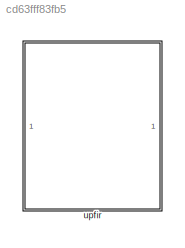
MODEL slx_cd63fff83fb5
KIND library
CONFIG AbsTol = auto
CONFIG EnableMultiTasking = off
CONFIG FixedStep = auto
CONFIG MaxStep = auto
CONFIG MinStep = auto
CONFIG RelTol = 1e-3
CONFIG SampleTimeConstraint = Unconstrained
CONFIG SolverName = VariableStepAuto
CONFIG StartTime = 0.0
CONFIG StopTime = 10.0
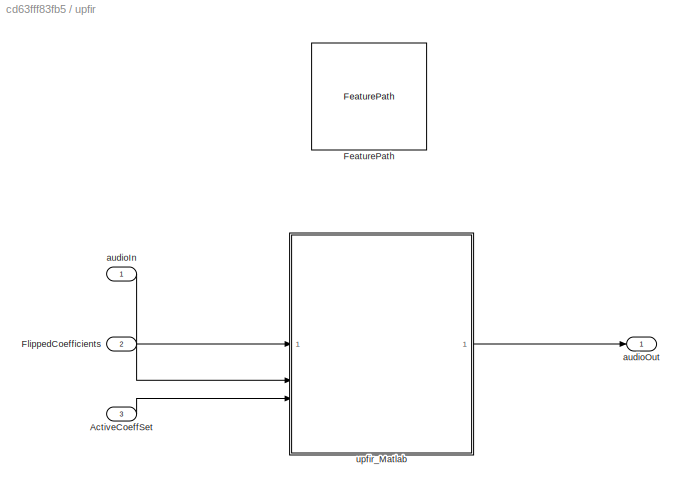
BLOCK [SubSystem] upfir
BLOCK [Inport] upfir/ActiveCoeffSet
  Port = 3
BLOCK [Reference] upfir/FeaturePath  REF=FeaturePath/FeaturePath
  SourceBlock = FeaturePath/FeaturePath
  SourceType = Talaria Feature Path
BLOCK [Inport] upfir/FlippedCoefficients
  Port = 2
BLOCK [Inport] upfir/audioIn
BLOCK [Outport] upfir/audioOut
  VectorParamsAs1DForOutWhenUnconnected = off
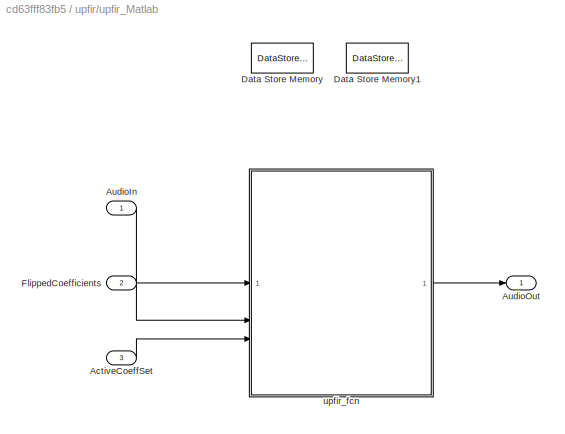
BLOCK [SubSystem] upfir/upfir_Matlab
BLOCK [Inport] upfir/upfir_Matlab/ActiveCoeffSet
  Port = 3
BLOCK [Inport] upfir/upfir_Matlab/AudioIn
BLOCK [Outport] upfir/upfir_Matlab/AudioOut
  VectorParamsAs1DForOutWhenUnconnected = off
BLOCK [DataStoreMemory] upfir/upfir_Matlab/Data Store Memory
  DataStoreName = states
  InitialValue = single(zeros(polyLen + 2, numChannels))
  OutDataTypeStr = single
  ShowAdditionalParam = off
  SignalType = real
BLOCK [DataStoreMemory] upfir/upfir_Matlab/Data Store Memory1
  DataStoreName = state_index
  OutDataTypeStr = int32
  ShowAdditionalParam = off
  SignalType = real
BLOCK [Inport] upfir/upfir_Matlab/FlippedCoefficients
  Port = 2
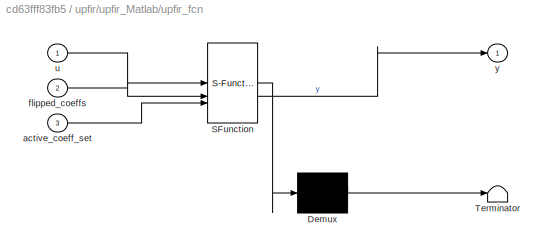
BLOCK [SubSystem] upfir/upfir_Matlab/upfir_fcn
  ErrorFcn = Stateflow.Translate.translate
  PermitHierarchicalResolution = ExplicitOnly
  SFBlockType = MATLAB Function
  TreatAsAtomicUnit = on
BLOCK [Demux] upfir/upfir_Matlab/upfir_fcn/ Demux 
  Outputs = 1
BLOCK [S-Function] upfir/upfir_Matlab/upfir_fcn/ SFunction 
  EnableBusSupport = off
  FunctionName = sf_sfun
  Parameters = interp_factor
  PortCounts = [3 2]
  SFcnIsStateOwnerBlock = off
  SFunctionDeploymentMode = off
  Tag = Stateflow S-Function 3
BLOCK [Terminator] upfir/upfir_Matlab/upfir_fcn/ Terminator 
BLOCK [Inport] upfir/upfir_Matlab/upfir_fcn/active_coeff_set
  Port = 3
BLOCK [Inport] upfir/upfir_Matlab/upfir_fcn/flipped_coeffs
  Port = 2
BLOCK [Inport] upfir/upfir_Matlab/upfir_fcn/u
BLOCK [Outport] upfir/upfir_Matlab/upfir_fcn/y
  VectorParamsAs1DForOutWhenUnconnected = off
LINE upfir/ActiveCoeffSet:1 -> upfir/upfir_Matlab:3
LINE upfir/FlippedCoefficients:1 -> upfir/upfir_Matlab:2
LINE upfir/audioIn:1 -> upfir/upfir_Matlab:1
LINE upfir/upfir_Matlab/ActiveCoeffSet:1 -> upfir/upfir_Matlab/upfir_fcn:3
LINE upfir/upfir_Matlab/AudioIn:1 -> upfir/upfir_Matlab/upfir_fcn:1
LINE upfir/upfir_Matlab/FlippedCoefficients:1 -> upfir/upfir_Matlab/upfir_fcn:2
LINE upfir/upfir_Matlab/upfir_fcn:1 -> upfir/upfir_Matlab/AudioOut:1
LINE upfir/upfir_Matlab:1 -> upfir/audioOut:1
CHART upfir/upfir_Matlab/upfir_fcn states=1 transitions=1
  STATE_LABEL 'eML_blk_kernel()'
  STATE_LABEL 'SCRIPT:\nfunction y = UpFIR(u, flipped_coeffs, active_coeff_set, interp_factor)\n% UP-FIR implements up-sampling by an integer factor followed by a FIR \n% filter. The back-to-back processing is accomplished using an efficient \n% polyphase implementation. Let ‘I’ represent the up-sampling factor.  \n% Only the first BlockSize/I input samples are used and all BlockSize \n% output samples are generated. ...<+2283ch>'
CHART  states=0 transitions=0
